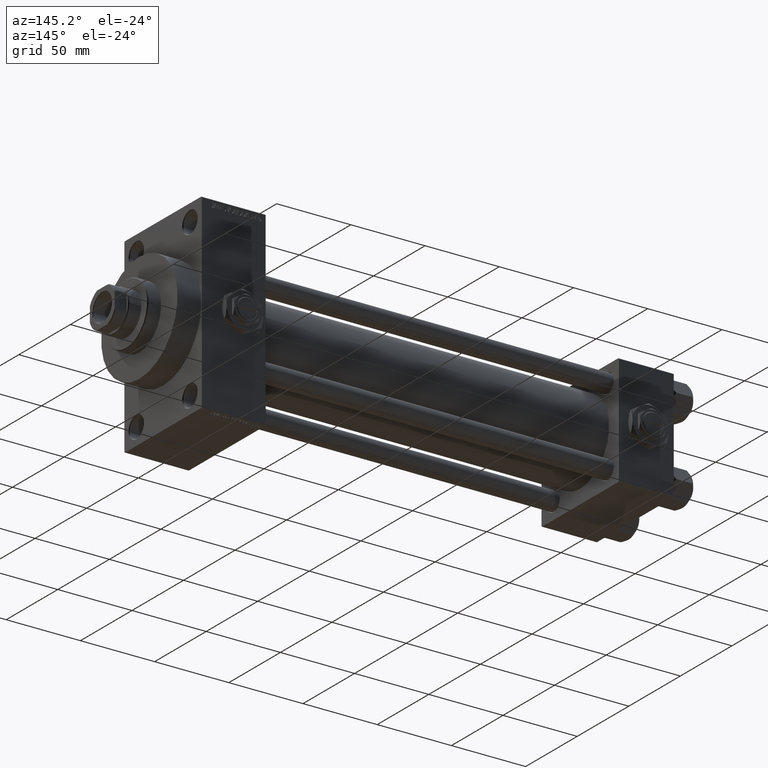
[diagram: clean part render]
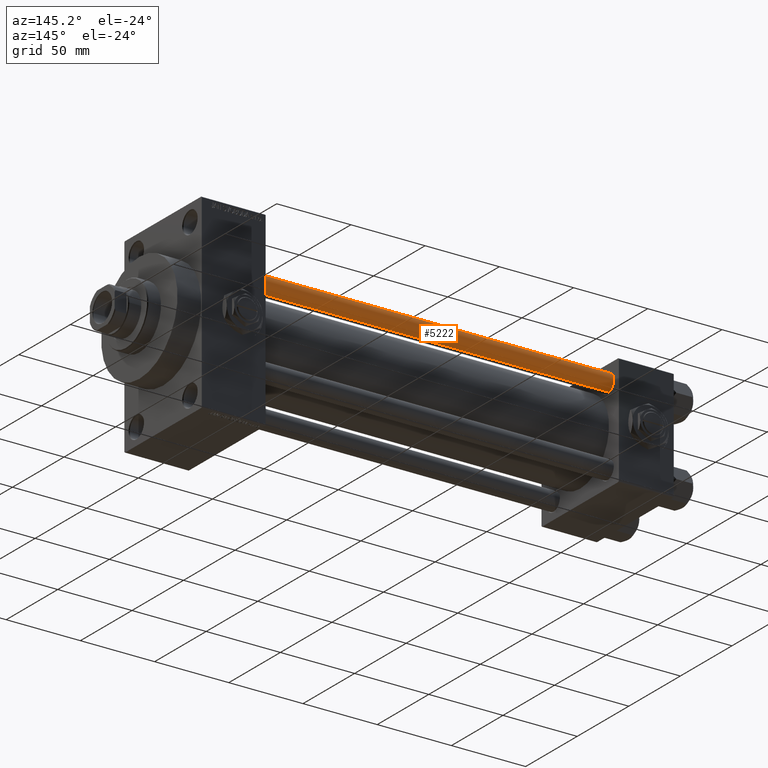
[diagram: same view with one face highlighted and labeled with its STEP entity id]
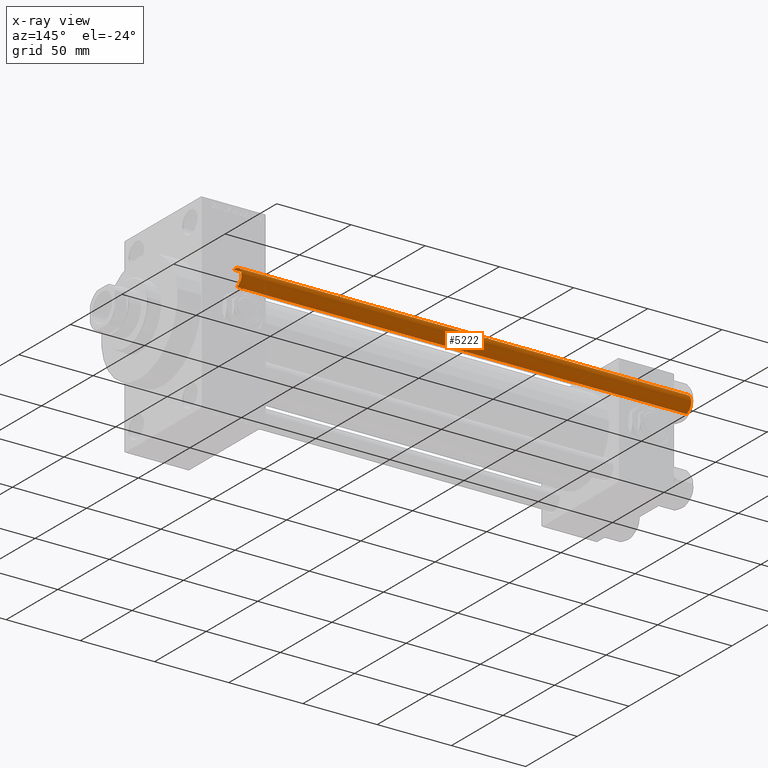
[diagram: x-ray of the same camera — body ghosted, the highlighted face saturated]
A machine part, auxiliary view. The second image highlights one B-rep face of the part: STEP entity #5222.
The next image is the same camera in x-ray: the body ghosted, the highlighted face saturated — about 0% of this face is hidden behind the body in this view.
In plain terms, the highlighted cylindrical surface (edge-blend (fillet) strip) has radius 6 mm, axis along (-1, -0, 0).
Its self-contained STEP definition (entity closure, byte-faithful):
#257 = ORIENTED_EDGE ( 'NONE', *, *, #13709, .T. ) ;
#1370 = LINE ( 'NONE', #42512, #28054 ) ;
#4878 = DIRECTION ( 'NONE',  ( -0.000000000000000000, -0.000000000000000000, -1.000000000000000000 ) ) ;
#4967 = AXIS2_PLACEMENT_3D ( 'NONE', #47205, #9081, #39480 ) ;
#5222 = ADVANCED_FACE ( 'NONE', ( #43215 ), #16551, .T. ) ;
#9081 = DIRECTION ( 'NONE',  ( -0.000000000000000000, -0.000000000000000000, -1.000000000000000000 ) ) ;
#9232 = EDGE_CURVE ( 'NONE', #41321, #36724, #1370, .T. ) ;
#13056 = CARTESIAN_POINT ( 'NONE',  ( 6.000000000000000888, 7.347880794884120722E-16, 303.5000000000000000 ) ) ;
#13709 = EDGE_CURVE ( 'NONE', #36724, #27032, #41570, .T. ) ;
#13806 = DIRECTION ( 'NONE',  ( 0.000000000000000000, 0.000000000000000000, -1.000000000000000000 ) ) ;
#14047 = CARTESIAN_POINT ( 'NONE',  ( 0.000000000000000000, 0.000000000000000000, 303.5000000000000000 ) ) ;
#16551 = CYLINDRICAL_SURFACE ( 'NONE', #4967, 6.000000000000000888 ) ;
#16778 = AXIS2_PLACEMENT_3D ( 'NONE', #14047, #13806, #48706 ) ;
#17494 = VERTEX_POINT ( 'NONE', #26728 ) ;
#18464 = LINE ( 'NONE', #25704, #21163 ) ;
#18837 = DIRECTION ( 'NONE',  ( -0.000000000000000000, -0.000000000000000000, 1.000000000000000000 ) ) ;
#19989 = CIRCLE ( 'NONE', #16778, 6.000000000000000888 ) ;
#21163 = VECTOR ( 'NONE', #33184, 1000.000000000000000 ) ;
#25653 = EDGE_CURVE ( 'NONE', #17494, #27032, #18464, .T. ) ;
#25704 = CARTESIAN_POINT ( 'NONE',  ( -6.000000000000000888, 0.000000000000000000, 304.0000000000000000 ) ) ;
#26728 = CARTESIAN_POINT ( 'NONE',  ( -6.000000000000000888, 0.000000000000000000, 303.5000000000000000 ) ) ;
#27032 = VERTEX_POINT ( 'NONE', #38271 ) ;
#28054 = VECTOR ( 'NONE', #4878, 1000.000000000000000 ) ;
#33184 = DIRECTION ( 'NONE',  ( -0.000000000000000000, -0.000000000000000000, -1.000000000000000000 ) ) ;
#33610 = AXIS2_PLACEMENT_3D ( 'NONE', #37798, #18837, #48771 ) ;
#35793 = ORIENTED_EDGE ( 'NONE', *, *, #9232, .T. ) ;
#36724 = VERTEX_POINT ( 'NONE', #47869 ) ;
#37547 = EDGE_LOOP ( 'NONE', ( #48050, #35793, #257, #41393 ) ) ;
#37798 = CARTESIAN_POINT ( 'NONE',  ( 0.000000000000000000, 0.000000000000000000, 0.4999999999999449329 ) ) ;
#37876 = EDGE_CURVE ( 'NONE', #17494, #41321, #19989, .T. ) ;
#38271 = CARTESIAN_POINT ( 'NONE',  ( -6.000000000000000888, 0.000000000000000000, 0.4999999999999449329 ) ) ;
#39480 = DIRECTION ( 'NONE',  ( -1.000000000000000000, 0.000000000000000000, 0.000000000000000000 ) ) ;
#41321 = VERTEX_POINT ( 'NONE', #13056 ) ;
#41393 = ORIENTED_EDGE ( 'NONE', *, *, #25653, .F. ) ;
#41570 = CIRCLE ( 'NONE', #33610, 6.000000000000000888 ) ;
#42512 = CARTESIAN_POINT ( 'NONE',  ( 6.000000000000000888, 7.347880794884120722E-16, 304.0000000000000000 ) ) ;
#43215 = FACE_OUTER_BOUND ( 'NONE', #37547, .T. ) ;
#47205 = CARTESIAN_POINT ( 'NONE',  ( 0.000000000000000000, 0.000000000000000000, 304.0000000000000000 ) ) ;
#47869 = CARTESIAN_POINT ( 'NONE',  ( 6.000000000000000888, 7.347880794884120722E-16, 0.4999999999999449329 ) ) ;
#48050 = ORIENTED_EDGE ( 'NONE', *, *, #37876, .T. ) ;
#48706 = DIRECTION ( 'NONE',  ( 1.000000000000000000, 0.000000000000000000, 0.000000000000000000 ) ) ;
#48771 = DIRECTION ( 'NONE',  ( 1.000000000000000000, 0.000000000000000000, 0.000000000000000000 ) ) ;